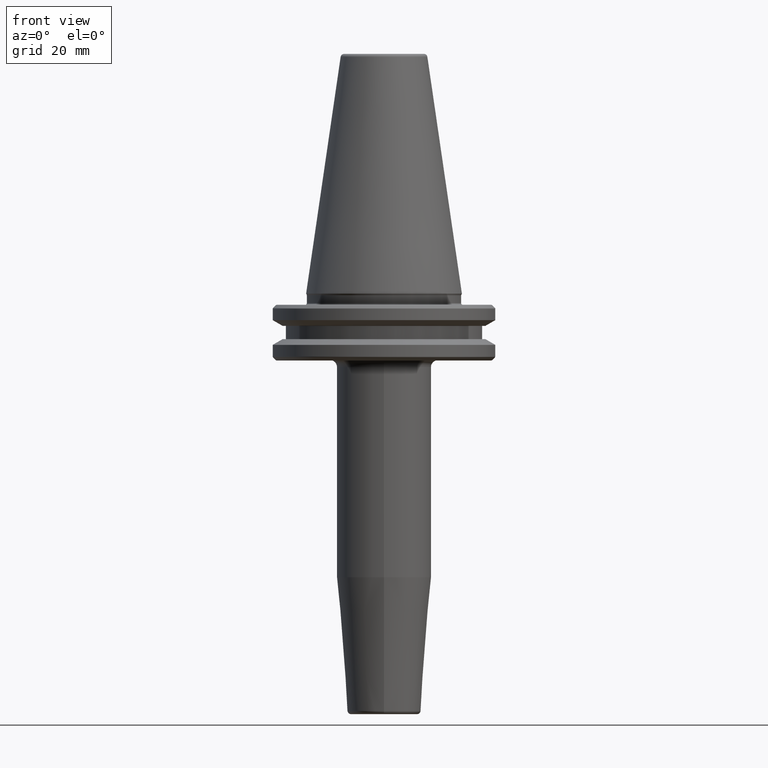
[diagram: clean part render]
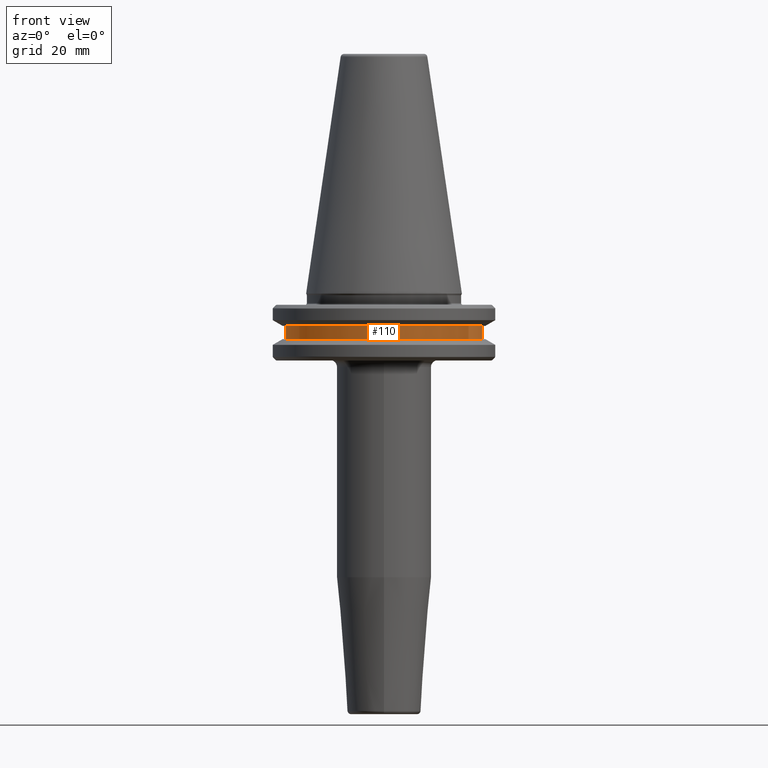
[diagram: same view with one face highlighted and labeled with its STEP entity id]
A machine part, front view. The second image highlights one B-rep face of the part: STEP entity #110.
In plain terms, the highlighted cylindrical surface (partial cylindrical patch) has radius 28 mm, axis along (-0, -0, 1).
Its self-contained STEP definition (entity closure, byte-faithful):
#51 = DIRECTION ( 'NONE',  ( 1.000000000000000000, 0.0000000000000000000, 0.0000000000000000000 ) ) ;
#110 = ADVANCED_FACE ( 'NONE', ( #362 ), #1062, .T. ) ;
#127 = CARTESIAN_POINT ( 'NONE',  ( 0.0000000000000000000, 0.0000000000000000000, -13.00000000000001100 ) ) ;
#235 = LINE ( 'NONE', #320, #498 ) ;
#260 = EDGE_CURVE ( 'NONE', #882, #874, #1010, .T. ) ;
#286 = EDGE_CURVE ( 'NONE', #696, #1128, #975, .T. ) ;
#320 = CARTESIAN_POINT ( 'NONE',  ( -28.00000000000000000, 3.429011037612589300E-015, 113.5216080541959500 ) ) ;
#343 = DIRECTION ( 'NONE',  ( -0.0000000000000000000, -0.0000000000000000000, 1.000000000000000000 ) ) ;
#362 = FACE_OUTER_BOUND ( 'NONE', #585, .T. ) ;
#374 = CARTESIAN_POINT ( 'NONE',  ( 0.0000000000000000000, 0.0000000000000000000, -9.199999999999999300 ) ) ;
#389 = ORIENTED_EDGE ( 'NONE', *, *, #260, .T. ) ;
#470 = ORIENTED_EDGE ( 'NONE', *, *, #952, .T. ) ;
#498 = VECTOR ( 'NONE', #610, 1000.000000000000000 ) ;
#552 = AXIS2_PLACEMENT_3D ( 'NONE', #1258, #923, #631 ) ;
#562 = VECTOR ( 'NONE', #343, 1000.000000000000000 ) ;
#585 = EDGE_LOOP ( 'NONE', ( #652, #389, #470, #704 ) ) ;
#610 = DIRECTION ( 'NONE',  ( -0.0000000000000000000, -0.0000000000000000000, 1.000000000000000000 ) ) ;
#631 = DIRECTION ( 'NONE',  ( 1.000000000000000000, 0.0000000000000000000, 0.0000000000000000000 ) ) ;
#634 = DIRECTION ( 'NONE',  ( -0.0000000000000000000, -0.0000000000000000000, 1.000000000000000000 ) ) ;
#652 = ORIENTED_EDGE ( 'NONE', *, *, #1047, .F. ) ;
#696 = VERTEX_POINT ( 'NONE', #1238 ) ;
#704 = ORIENTED_EDGE ( 'NONE', *, *, #286, .F. ) ;
#714 = AXIS2_PLACEMENT_3D ( 'NONE', #374, #1138, #1224 ) ;
#832 = CARTESIAN_POINT ( 'NONE',  ( 28.00000000000000000, 0.0000000000000000000, 113.5216080541959500 ) ) ;
#839 = AXIS2_PLACEMENT_3D ( 'NONE', #127, #634, #51 ) ;
#874 = VERTEX_POINT ( 'NONE', #1201 ) ;
#876 = LINE ( 'NONE', #832, #562 ) ;
#882 = VERTEX_POINT ( 'NONE', #1114 ) ;
#923 = DIRECTION ( 'NONE',  ( -0.0000000000000000000, -0.0000000000000000000, 1.000000000000000000 ) ) ;
#952 = EDGE_CURVE ( 'NONE', #874, #1128, #876, .T. ) ;
#975 = CIRCLE ( 'NONE', #714, 28.00000000000000000 ) ;
#1008 = CARTESIAN_POINT ( 'NONE',  ( 28.00000000000000000, 0.0000000000000000000, -9.199999999999999300 ) ) ;
#1010 = CIRCLE ( 'NONE', #839, 28.00000000000000000 ) ;
#1047 = EDGE_CURVE ( 'NONE', #882, #696, #235, .T. ) ;
#1062 = CYLINDRICAL_SURFACE ( 'NONE', #552, 28.00000000000000000 ) ;
#1114 = CARTESIAN_POINT ( 'NONE',  ( -28.00000000000000000, 3.429011037612589300E-015, -13.00000000000001100 ) ) ;
#1128 = VERTEX_POINT ( 'NONE', #1008 ) ;
#1138 = DIRECTION ( 'NONE',  ( -0.0000000000000000000, -0.0000000000000000000, 1.000000000000000000 ) ) ;
#1201 = CARTESIAN_POINT ( 'NONE',  ( 28.00000000000000000, 0.0000000000000000000, -13.00000000000001100 ) ) ;
#1224 = DIRECTION ( 'NONE',  ( 1.000000000000000000, 0.0000000000000000000, 0.0000000000000000000 ) ) ;
#1238 = CARTESIAN_POINT ( 'NONE',  ( -28.00000000000000000, 3.429011037612589300E-015, -9.199999999999999300 ) ) ;
#1258 = CARTESIAN_POINT ( 'NONE',  ( 0.0000000000000000000, 0.0000000000000000000, 113.5216080541959500 ) ) ;